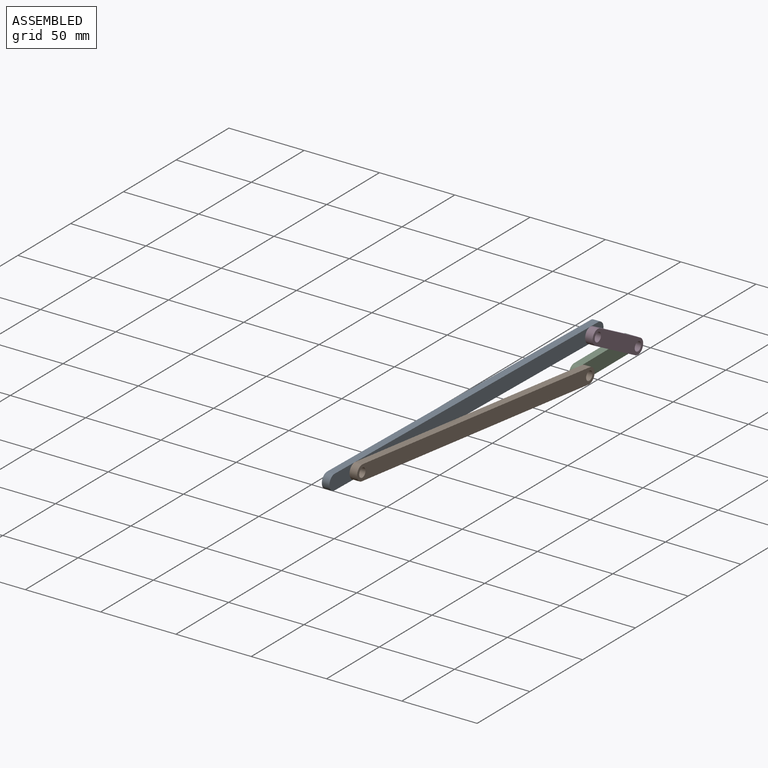
[diagram: assembled view]
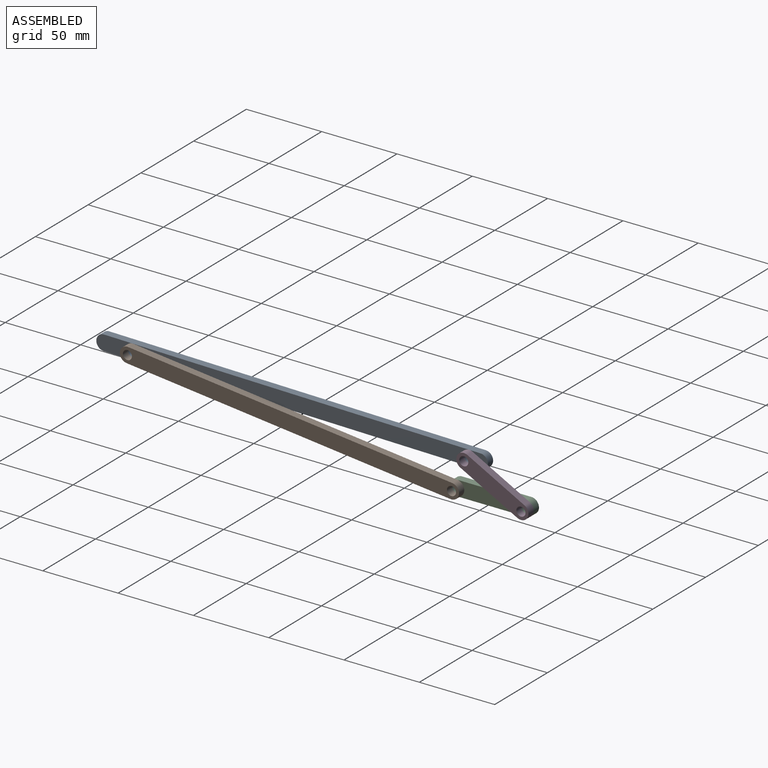
[diagram: assembled view, second angle]
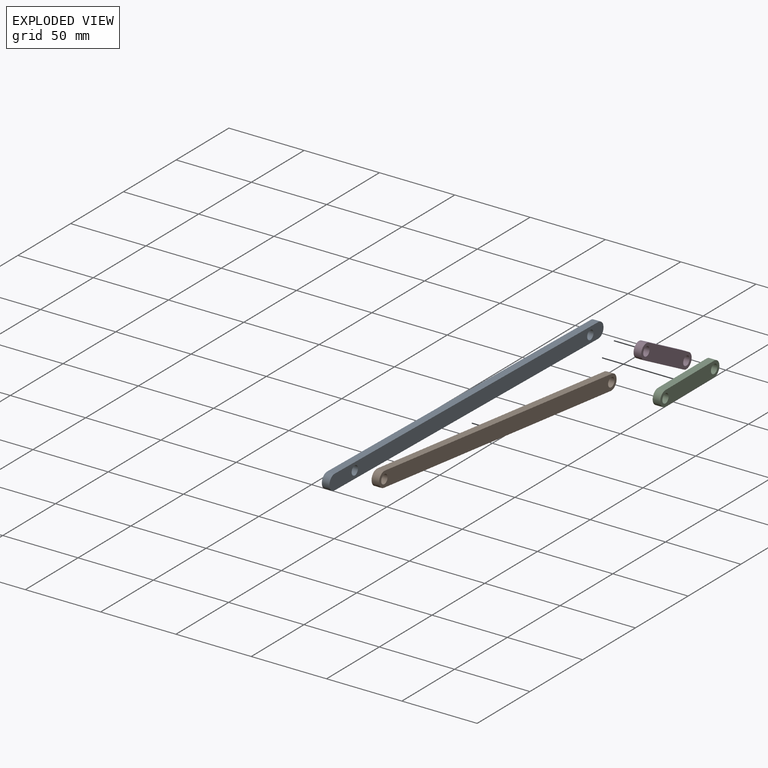
[diagram: exploded view]
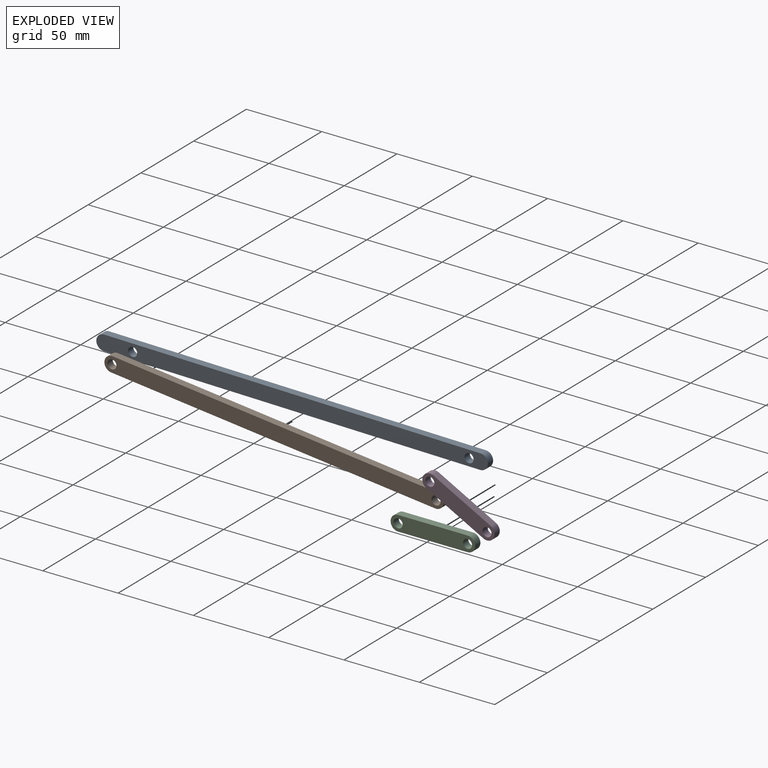
[diagram: exploded view, second angle]
ASSEMBLY  parts=4 mates=4
PART A: 8 faces, bbox 5x260x10 mm
  f0: cylinder r=5mm len=10mm, axis (1,0,0), area 78.5mm2, adj f1,f4,f6,f7
  f1: plane 250x5mm, normal (0,0,-1), area 1250mm2, adj f0,f2,f6,f7
  f2: cylinder r=5mm len=10mm, axis (1,0,0), area 78.5mm2, adj f1,f4,f6,f7
  f3: cylinder r=3mm len=6mm, axis (1,0,0), area 94.2mm2, adj f6,f7
  f4: plane 250x5mm, normal (0,0,1), area 1250mm2, adj f0,f2,f6,f7
  f5: cylinder r=3mm len=6mm, axis (1,0,0), area 94.2mm2, adj f6,f7
  f6: plane 260x10mm, normal (-1,0,0), area 2522mm2, adj f0,f1,f2,f3,f4,f5
  f7: plane 260x10mm, normal (1,0,0), area 2522mm2, adj f0,f1,f2,f3,f4,f5
PART B: 8 faces, bbox 5x225.7x29.2 mm
  f0: cylinder r=5mm len=9.98mm, axis (-1,0,0), area 78.5mm2, adj f1,f4,f6,f7
  f1: plane 215.66x19.2mm, normal (0,0.09,1), area 1082.6mm2, adj f0,f2,f6,f7
  f2: cylinder r=5mm len=9.98mm, axis (-1,0,0), area 78.5mm2, adj f1,f4,f6,f7
  f3: cylinder r=3mm len=6mm, axis (-1,0,0), area 94.2mm2, adj f6,f7
  f4: plane 215.66x19.2mm, normal (0,-0.09,-1), area 1082.6mm2, adj f0,f2,f6,f7
  f5: cylinder r=3mm len=6mm, axis (-1,0,0), area 94.2mm2, adj f6,f7
  f6: plane 225.66x29.2mm, normal (1,0,0), area 2187.1mm2, adj f0,f1,f2,f3,f4,f5
  f7: plane 225.66x29.2mm, normal (-1,0,0), area 2187.1mm2, adj f0,f1,f2,f3,f4,f5
PART C: 8 faces, bbox 5x56.1x10 mm
  f0: cylinder r=5mm len=10mm, axis (1,0,0), area 78.5mm2, adj f1,f4,f6,f7
  f1: plane 46.12x5mm, normal (0,0,-1), area 230.6mm2, adj f0,f2,f6,f7
  f2: cylinder r=5mm len=10mm, axis (1,0,0), area 78.5mm2, adj f1,f4,f6,f7
  f3: cylinder r=3mm len=6mm, axis (1,0,0), area 94.2mm2, adj f6,f7
  f4: plane 46.12x5mm, normal (0,0,1), area 230.6mm2, adj f0,f2,f6,f7
  f5: cylinder r=3mm len=6mm, axis (1,0,0), area 94.2mm2, adj f6,f7
  f6: plane 56.12x10mm, normal (-1,0,0), area 483.2mm2, adj f0,f1,f2,f3,f4,f5
  f7: plane 56.12x10mm, normal (1,0,0), area 483.2mm2, adj f0,f1,f2,f3,f4,f5
PART D: 8 faces, bbox 5x48.4x29.2 mm
  f0: cylinder r=5mm len=9.47mm, axis (-1,0,0), area 78.5mm2, adj f1,f4,f6,f7
  f1: plane 38.39x19.2mm, normal (0,0.45,0.89), area 214.6mm2, adj f0,f2,f6,f7
  f2: cylinder r=5mm len=9.47mm, axis (-1,0,0), area 78.5mm2, adj f1,f4,f6,f7
  f3: cylinder r=3mm len=6mm, axis (-1,0,0), area 94.2mm2, adj f6,f7
  f4: plane 38.39x19.2mm, normal (0,-0.45,-0.89), area 214.6mm2, adj f0,f2,f6,f7
  f5: cylinder r=3mm len=6mm, axis (-1,0,0), area 94.2mm2, adj f6,f7
  f6: plane 48.39x29.2mm, normal (1,0,0), area 451.3mm2, adj f0,f1,f2,f3,f4,f5
  f7: plane 48.39x29.2mm, normal (-1,0,0), area 451.3mm2, adj f0,f1,f2,f3,f4,f5
PLACE A rot(axis=(-1,0,0),1deg) t=(0,0.49,5.2)mm
PLACE B rot(axis=(-1,0,0),1.3deg) t=(0,0.49,5.29)mm
PLACE C at identity fixed
PLACE D rot(axis=(-1,0,0),1.3deg) t=(0,0.52,6.47)mm
MATE revolute D.f3 <-> A.f5  axis (-1,0,0) through (0,242.97,0.88)mm
MATE revolute B.f5 <-> A.f3  axis (-1,0,0) through (0,19.62,4.86)mm
MATE revolute C.f0 <-> B.f0  axis (1,0,0) through (0,234.79,-19.2)mm
MATE revolute C.f2 <-> D.f0  axis (1,0,0) through (0,280.91,-19.2)mm
